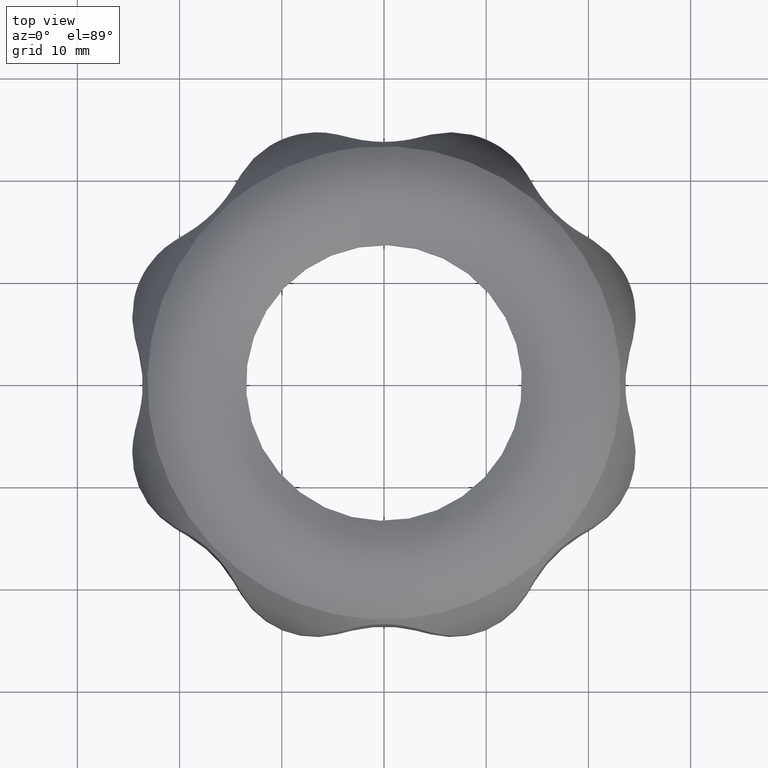
[diagram: clean part render]
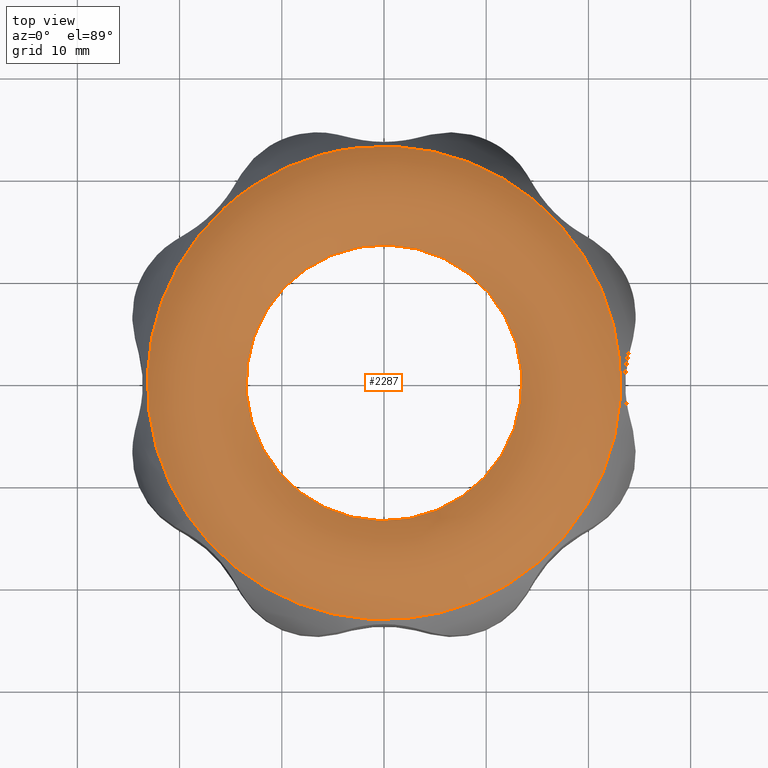
[diagram: same view with one face highlighted and labeled with its STEP entity id]
A machine part, top view. The second image highlights one B-rep face of the part: STEP entity #2287.
In plain terms, the highlighted toroidal blend (fillet) surface has major radius 18 mm and minor (blend) radius 7.3 mm.
Its self-contained STEP definition (entity closure, byte-faithful):
#2287 = ADVANCED_FACE( '', ( #6744, #6745 ), #6746, .T. );
#6744 = FACE_OUTER_BOUND( '', #11380, .T. );
#6745 = FACE_OUTER_BOUND( '', #11381, .T. );
#6746 = TOROIDAL_SURFACE( '', #11382, 18.0000000000000, 7.30000000000000 );
#11380 = EDGE_LOOP( '', ( #31073 ) );
#11381 = EDGE_LOOP( '', ( #31074 ) );
#11382 = AXIS2_PLACEMENT_3D( '', #31075, #31076, #31077 );
#31073 = ORIENTED_EDGE( '', *, *, #37647, .F. );
#31074 = ORIENTED_EDGE( '', *, *, #37648, .T. );
#31075 = CARTESIAN_POINT( '', ( 0.000000000000000, 0.000000000000000, 9.19995685472006 ) );
#31076 = DIRECTION( '', ( 2.34318281388423E-017, -5.65694372839885E-017, 1.00000000000000 ) );
#31077 = DIRECTION( '', ( 0.382683432365090, -0.923879532511287, -6.12303176911189E-017 ) );
#37647 = EDGE_CURVE( '', #48539, #48539, #48540, .T. );
#37648 = EDGE_CURVE( '', #48541, #48541, #48542, .T. );
#48539 = VERTEX_POINT( '', #76190 );
#48540 = CIRCLE( '', #76191, 13.5000000000000 );
#48541 = VERTEX_POINT( '', #76192 );
#48542 = CIRCLE( '', #76193, 23.1618795026619 );
#76190 = CARTESIAN_POINT( '', ( 5.16622633692871, -12.4723736889024, 14.9480000000000 ) );
#76191 = AXIS2_PLACEMENT_3D( '', #78727, #78728, #78729 );
#76192 = CARTESIAN_POINT( '', ( 8.86366754810526, -21.3987864070020, 14.3618363573818 ) );
#76193 = AXIS2_PLACEMENT_3D( '', #78730, #78731, #78732 );
#78727 = CARTESIAN_POINT( '', ( 0.000000000000000, 0.000000000000000, 14.9480000000000 ) );
#78728 = DIRECTION( '', ( 2.34318281388423E-017, -5.65694372839885E-017, 1.00000000000000 ) );
#78729 = DIRECTION( '', ( 0.382683432365090, -0.923879532511287, -6.12303176911189E-017 ) );
#78730 = CARTESIAN_POINT( '', ( 0.000000000000000, 0.000000000000000, 14.3618363573818 ) );
#78731 = DIRECTION( '', ( 2.34318281388423E-017, -5.65694372839885E-017, 1.00000000000000 ) );
#78732 = DIRECTION( '', ( 0.382683432365090, -0.923879532511287, -6.12303176911189E-017 ) );